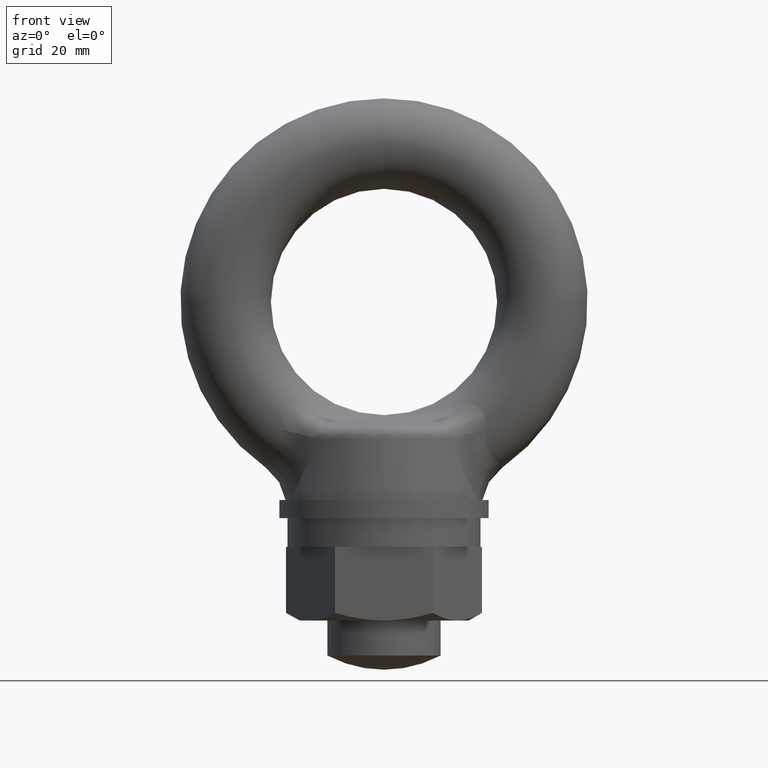
[diagram: clean part render]
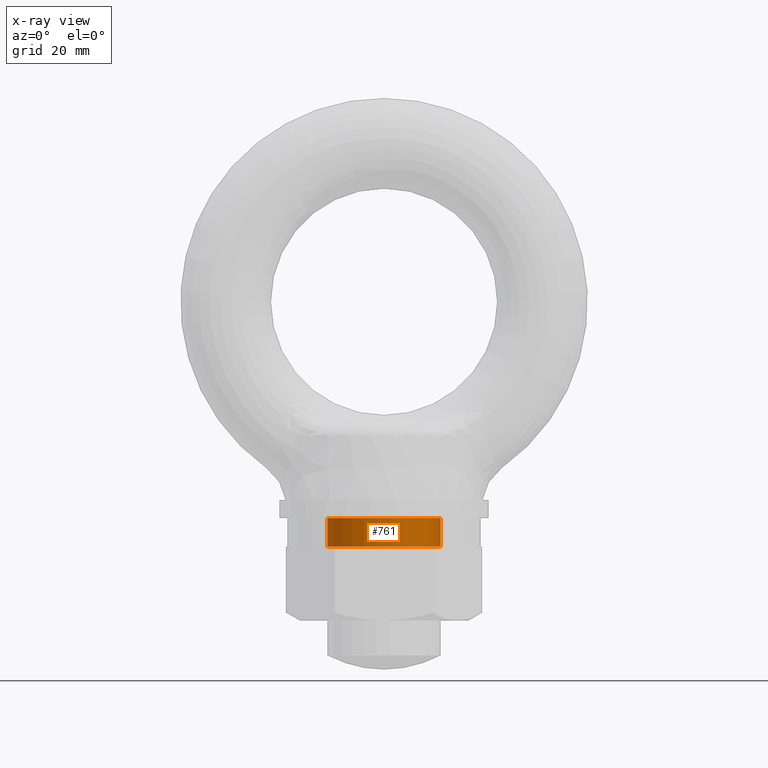
[diagram: x-ray — body ghosted, one internal face saturated and labeled with its STEP entity id]
A machine part, front view, then the same camera in x-ray: the body is ghosted and one INTERNAL B-rep face — a face not visible from any outside direction — is saturated and labeled: STEP entity #761.
In plain terms, the highlighted cylindrical surface (partial cylindrical patch) has radius 10 mm, axis along (0, 0, 1).
Its self-contained STEP definition (entity closure, byte-faithful):
#237 = CYLINDRICAL_SURFACE ( 'NONE', #293, 10.00000000000000000 ) ;
#238 = FACE_OUTER_BOUND ( 'NONE', #762, .T. ) ;
#289 = CARTESIAN_POINT ( 'NONE',  ( 10.00000000000000000, 0.0000000000000000000, -43.29999900000014900 ) ) ;
#290 = DIRECTION ( 'NONE',  ( 1.000000000000000000, 0.0000000000000000000, 0.0000000000000000000 ) ) ;
#291 = DIRECTION ( 'NONE',  ( 0.0000000000000000000, 0.0000000000000000000, 1.000000000000000000 ) ) ;
#292 = CARTESIAN_POINT ( 'NONE',  ( 0.0000000000000000000, 0.0000000000000000000, -1038.200001000000200 ) ) ;
#293 = AXIS2_PLACEMENT_3D ( 'NONE', #292, #291, #290 ) ;
#457 = ORIENTED_EDGE ( 'NONE', *, *, #458, .F. ) ;
#458 = EDGE_CURVE ( 'NONE', #763, #872, #3004, .T. ) ;
#761 = ADVANCED_FACE ( 'NONE', ( #238 ), #237, .F. ) ;
#762 = EDGE_LOOP ( 'NONE', ( #864, #867, #870, #457 ) ) ;
#763 = VERTEX_POINT ( 'NONE', #289 ) ;
#864 = ORIENTED_EDGE ( 'NONE', *, *, #865, .T. ) ;
#865 = EDGE_CURVE ( 'NONE', #763, #866, #7620, .T. ) ;
#866 = VERTEX_POINT ( 'NONE', #7616 ) ;
#867 = ORIENTED_EDGE ( 'NONE', *, *, #868, .T. ) ;
#868 = EDGE_CURVE ( 'NONE', #866, #869, #7615, .T. ) ;
#869 = VERTEX_POINT ( 'NONE', #5709 ) ;
#870 = ORIENTED_EDGE ( 'NONE', *, *, #871, .F. ) ;
#871 = EDGE_CURVE ( 'NONE', #872, #869, #5695, .T. ) ;
#872 = VERTEX_POINT ( 'NONE', #5699 ) ;
#3001 = DIRECTION ( 'NONE',  ( 0.0000000000000000000, 0.0000000000000000000, 1.000000000000000000 ) ) ;
#3002 = VECTOR ( 'NONE', #3001, 1000.000000000000000 ) ;
#3003 = CARTESIAN_POINT ( 'NONE',  ( 10.00000000000000000, 0.0000000000000000000, -1038.200001000000200 ) ) ;
#3004 = LINE ( 'NONE', #3003, #3002 ) ;
#5694 = AXIS2_PLACEMENT_3D ( 'NONE', #5741, #5701, #5700 ) ;
#5695 = CIRCLE ( 'NONE', #5694, 10.00000000000000000 ) ;
#5699 = CARTESIAN_POINT ( 'NONE',  ( 10.00000000000000000, 0.0000000000000000000, -38.20000100000029900 ) ) ;
#5700 = DIRECTION ( 'NONE',  ( 1.000000000000000000, 0.0000000000000000000, 0.0000000000000000000 ) ) ;
#5701 = DIRECTION ( 'NONE',  ( 0.0000000000000000000, 0.0000000000000000000, -1.000000000000000000 ) ) ;
#5709 = CARTESIAN_POINT ( 'NONE',  ( -10.00000000000000000, 1.224606353822377300E-015, -38.20000100000029900 ) ) ;
#5741 = CARTESIAN_POINT ( 'NONE',  ( 0.0000000000000000000, 0.0000000000000000000, -38.20000100000029900 ) ) ;
#7612 = DIRECTION ( 'NONE',  ( 0.0000000000000000000, 0.0000000000000000000, 1.000000000000000000 ) ) ;
#7613 = VECTOR ( 'NONE', #7612, 1000.000000000000000 ) ;
#7614 = CARTESIAN_POINT ( 'NONE',  ( -10.00000000000000000, 1.224606353822377300E-015, -1038.200001000000200 ) ) ;
#7615 = LINE ( 'NONE', #7614, #7613 ) ;
#7616 = CARTESIAN_POINT ( 'NONE',  ( -10.00000000000000000, 1.224606353822377300E-015, -43.29999900000014900 ) ) ;
#7617 = DIRECTION ( 'NONE',  ( 1.000000000000000000, 0.0000000000000000000, 0.0000000000000000000 ) ) ;
#7618 = DIRECTION ( 'NONE',  ( 0.0000000000000000000, 0.0000000000000000000, -1.000000000000000000 ) ) ;
#7619 = AXIS2_PLACEMENT_3D ( 'NONE', #7625, #7618, #7617 ) ;
#7620 = CIRCLE ( 'NONE', #7619, 10.00000000000000000 ) ;
#7625 = CARTESIAN_POINT ( 'NONE',  ( 0.0000000000000000000, 0.0000000000000000000, -43.29999900000014900 ) ) ;